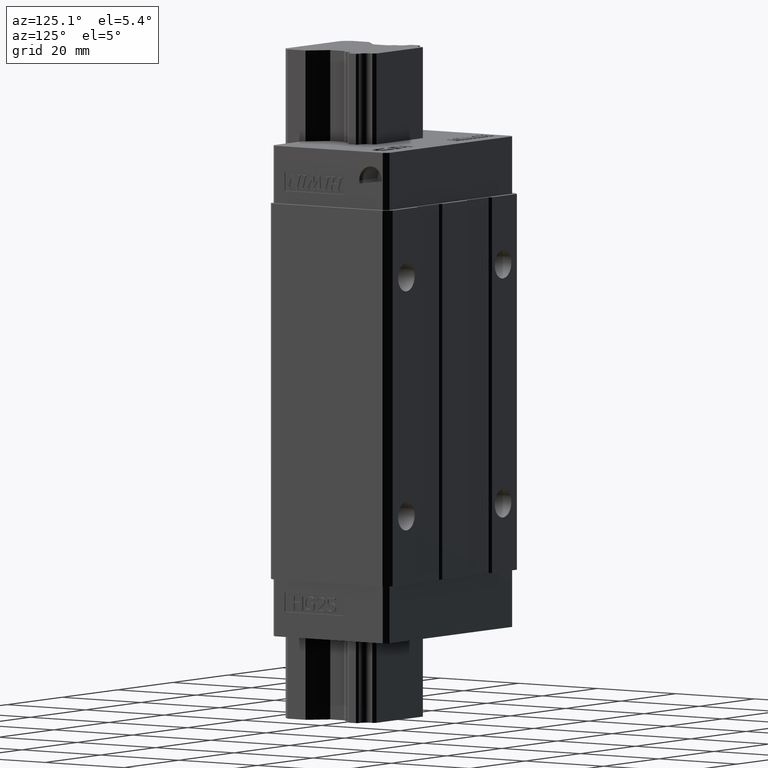
[diagram: clean part render]
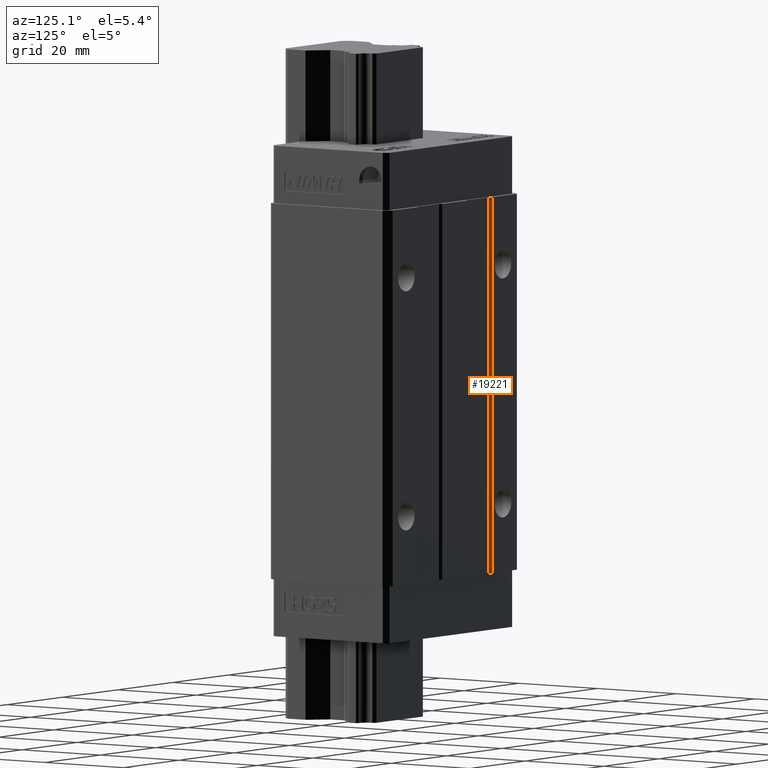
[diagram: same view with one face highlighted and labeled with its STEP entity id]
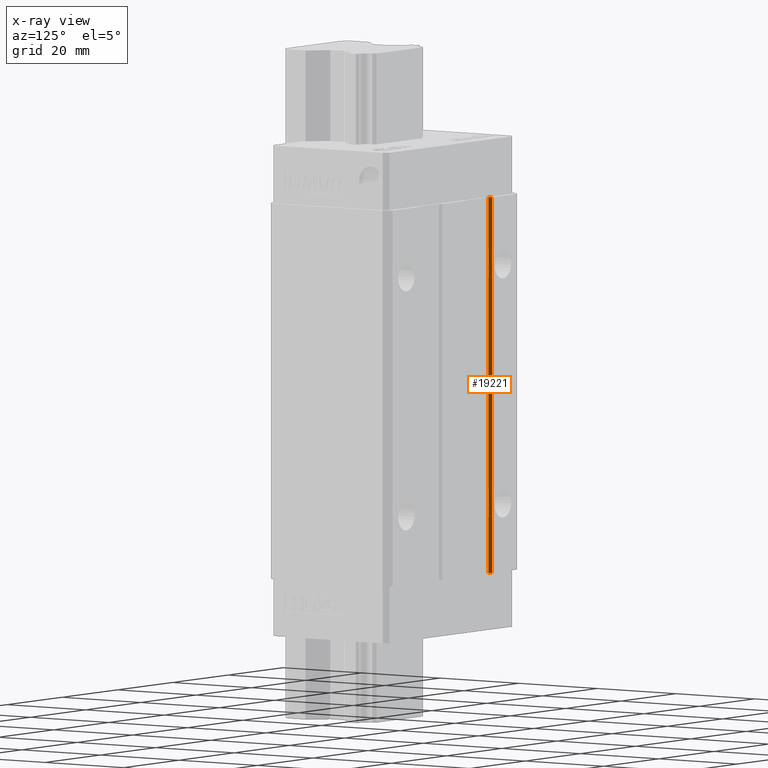
[diagram: x-ray of the same camera — body ghosted, the highlighted face saturated]
A machine part, auxiliary view. The second image highlights one B-rep face of the part: STEP entity #19221.
The next image is the same camera in x-ray: the body ghosted, the highlighted face saturated — about 0% of this face is hidden behind the body in this view.
In plain terms, the highlighted planar face has unit normal (-0.7071, -0.7071, 0).
Its self-contained STEP definition (entity closure, byte-faithful):
#981=DIRECTION('',(7.071067811865E-1,-7.071067811865E-1,0.E0));
#982=VECTOR('',#981,7.071067811865E-1);
#983=CARTESIAN_POINT('',(-1.35E1,1.4E1,0.E0));
#984=LINE('',#983,#982);
#1085=DIRECTION('',(0.E0,0.E0,-1.E0));
#1086=VECTOR('',#1085,7.86E1);
#1087=CARTESIAN_POINT('',(-1.3E1,1.35E1,0.E0));
#1088=LINE('',#1087,#1086);
#1093=DIRECTION('',(0.E0,0.E0,-1.E0));
#1094=VECTOR('',#1093,7.86E1);
#1095=CARTESIAN_POINT('',(-1.35E1,1.4E1,0.E0));
#1096=LINE('',#1095,#1094);
#1161=DIRECTION('',(-7.071067811865E-1,7.071067811865E-1,0.E0));
#1162=VECTOR('',#1161,7.071067811865E-1);
#1163=CARTESIAN_POINT('',(-1.3E1,1.35E1,-7.86E1));
#1164=LINE('',#1163,#1162);
#14627=CARTESIAN_POINT('',(-1.35E1,1.4E1,0.E0));
#14628=VERTEX_POINT('',#14627);
#14629=CARTESIAN_POINT('',(-1.3E1,1.35E1,0.E0));
#14630=VERTEX_POINT('',#14629);
#14653=CARTESIAN_POINT('',(-1.35E1,1.4E1,-7.86E1));
#14654=VERTEX_POINT('',#14653);
#14691=CARTESIAN_POINT('',(-1.3E1,1.35E1,-7.86E1));
#14692=VERTEX_POINT('',#14691);
#19208=CARTESIAN_POINT('',(-1.3E1,1.35E1,-7.86E1));
#19209=DIRECTION('',(-7.071067811865E-1,-7.071067811865E-1,0.E0));
#19210=DIRECTION('',(-7.071067811865E-1,7.071067811865E-1,0.E0));
#19211=AXIS2_PLACEMENT_3D('',#19208,#19209,#19210);
#19212=PLANE('',#19211);
#19213=ORIENTED_EDGE('',*,*,#19048,.F.);
#19215=ORIENTED_EDGE('',*,*,#19214,.T.);
#19217=ORIENTED_EDGE('',*,*,#19216,.F.);
#19218=ORIENTED_EDGE('',*,*,#19200,.F.);
#19219=EDGE_LOOP('',(#19213,#19215,#19217,#19218));
#19220=FACE_OUTER_BOUND('',#19219,.F.);
#19221=ADVANCED_FACE('',(#19220),#19212,.F.);
#19048=EDGE_CURVE('',#14628,#14630,#984,.T.);
#19200=EDGE_CURVE('',#14630,#14692,#1088,.T.);
#19214=EDGE_CURVE('',#14628,#14654,#1096,.T.);
#19216=EDGE_CURVE('',#14692,#14654,#1164,.T.);